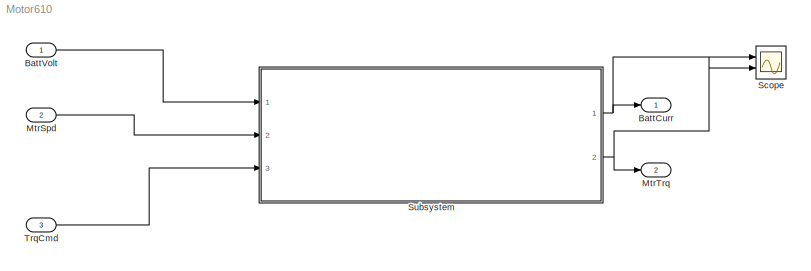
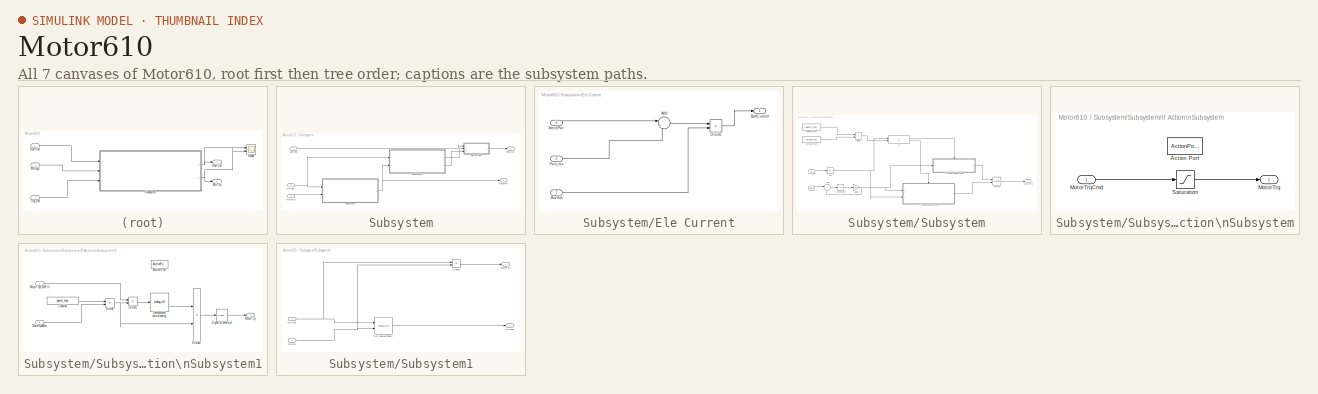
[diagram: thumbnail index - all 7 canvases of the model, root first then tree order]
MODEL Motor610
KIND model
BLOCK [Outport] BattCurr
  IconDisplay = Port number
  SID = 5
BLOCK [Inport] BattVolt
  IconDisplay = Port number
  SID = 1
BLOCK [Inport] MtrSpd
  IconDisplay = Port number
  Port = 2
  SID = 2
BLOCK [Outport] MtrTrq
  IconDisplay = Port number
  Port = 2
  SID = 6
BLOCK [Scope] Scope
  DataFormat = StructureWithTime
  Decimation = 1
  Floating = off
  Grid = on
  LimitDataPoints = off
  MaxDataPoints = 5000
  NumInputPorts = 2
  Ports = [2]
  SID = 110
  SampleInput = off
  SampleTime = -1
  SaveName = ScopeData
  SaveToWorkspace = off
  ShowLegends = off
  TickLabels = OneTimeTick
  TimeRange = auto
  YMax = 331.47128~331.47128
  YMin = -36.83014~-36.83014
  ZoomMode = on
BLOCK [SubSystem] Subsystem
  Ports = [3, 2]
  RequestExecContextInheritance = off
  SID = 7
BLOCK [Outport] Subsystem/BattCurr
  IconDisplay = Port number
  SID = 9
BLOCK [Inport] Subsystem/BattVolt
  IconDisplay = Port number
  SID = 12
BLOCK [SubSystem] Subsystem/Ele Current
  Ports = [3, 1]
  RequestExecContextInheritance = off
  SID = 98
BLOCK [Sum] Subsystem/Ele Current/Add
  IconShape = round
  InputSameDT = off
  Inputs = |++
  OutDataTypeStr = Inherit: Inherit via internal rule
  Ports = [2, 1]
  SID = 104
  SaturateOnIntegerOverflow = off
BLOCK [Outport] Subsystem/Ele Current/BattCurrent
  IconDisplay = Port number
  SID = 100
BLOCK [Inport] Subsystem/Ele Current/BusVolt
  IconDisplay = Port number
  SID = 101
BLOCK [Product] Subsystem/Ele Current/Divide
  InputSameDT = off
  Inputs = */
  OutDataTypeStr = Inherit: Inherit via internal rule
  Ports = [2, 1]
  RndMeth = Floor
  SID = 105
  SaturateOnIntegerOverflow = off
BLOCK [Inport] Subsystem/Ele Current/MechPwr
  IconDisplay = Port number
  Port = 3
  SID = 102
BLOCK [Inport] Subsystem/Ele Current/PwrLoss
  IconDisplay = Port number
  Port = 2
  SID = 103
BLOCK [Outport] Subsystem/MotorTrq
  IconDisplay = Port number
  Port = 2
  SID = 106
BLOCK [Inport] Subsystem/MtrSpd
  IconDisplay = Port number
  Port = 2
  SID = 13
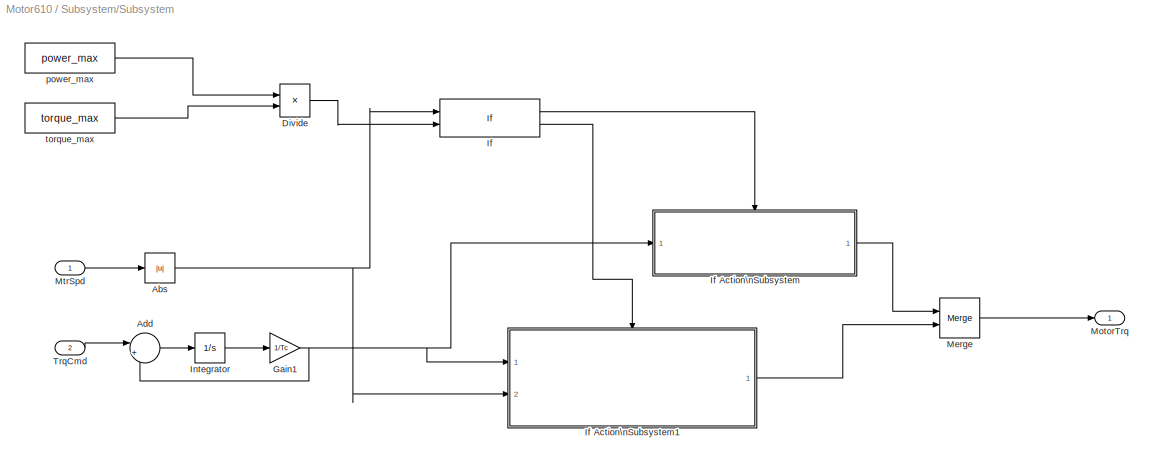
BLOCK [SubSystem] Subsystem/Subsystem
  Ports = [2, 1]
  RequestExecContextInheritance = off
  SID = 15
BLOCK [Abs] Subsystem/Subsystem/Abs
  SID = 23
  SaturateOnIntegerOverflow = off
BLOCK [Sum] Subsystem/Subsystem/Add
  IconShape = round
  InputSameDT = off
  Inputs = |+-
  OutDataTypeStr = Inherit: Inherit via internal rule
  Ports = [2, 1]
  SID = 34
  SaturateOnIntegerOverflow = off
BLOCK [Product] Subsystem/Subsystem/Divide
  InputSameDT = off
  Inputs = */
  OutDataTypeStr = Inherit: Inherit via internal rule
  Ports = [2, 1]
  SID = 22
BLOCK [Gain] Subsystem/Subsystem/Gain1
  Gain = 1/Tc
  OutDataTypeStr = Inherit: Inherit via internal rule
  ParamDataTypeStr = Inherit: Inherit via internal rule
  SID = 35
  SaturateOnIntegerOverflow = off
BLOCK [If] Subsystem/Subsystem/If
  IfExpression = u1<=u2
  NumInputs = 2
  Ports = [2, 2]
  SID = 24
BLOCK [SubSystem] Subsystem/Subsystem/If Action\nSubsystem
  Ports = [1, 1, 0, 0, 0, 0, 0, 1]
  RequestExecContextInheritance = off
  SID = 25
  TreatAsAtomicUnit = on
BLOCK [ActionPort] Subsystem/Subsystem/If Action\nSubsystem/Action Port
  ActionType = then
  SID = 27
BLOCK [Outport] Subsystem/Subsystem/If Action\nSubsystem/MotorTrq
  IconDisplay = Port number
  SID = 28
BLOCK [Inport] Subsystem/Subsystem/If Action\nSubsystem/MotorTrqCmd
  IconDisplay = Port number
  SID = 26
BLOCK [Saturate] Subsystem/Subsystem/If Action\nSubsystem/Saturation
  InputPortMap = u0
  LowerLimit = -torque_max
  Ports = [1, 1]
  SID = 33
  UpperLimit = torque_max
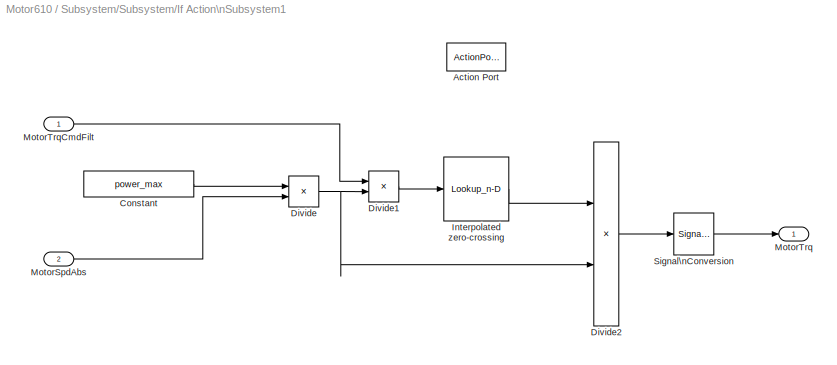
BLOCK [SubSystem] Subsystem/Subsystem/If Action\nSubsystem1
  Ports = [2, 1, 0, 0, 0, 0, 0, 1]
  RequestExecContextInheritance = off
  SID = 29
  TreatAsAtomicUnit = on
BLOCK [ActionPort] Subsystem/Subsystem/If Action\nSubsystem1/Action Port
  ActionType = else
  SID = 54
BLOCK [Constant] Subsystem/Subsystem/If Action\nSubsystem1/Constant
  SID = 55
  Value = power_max
BLOCK [Product] Subsystem/Subsystem/If Action\nSubsystem1/Divide
  InputSameDT = off
  Inputs = */
  OutDataTypeStr = Inherit: Inherit via internal rule
  Ports = [2, 1]
  RndMeth = Floor
  SID = 56
  SaturateOnIntegerOverflow = off
BLOCK [Product] Subsystem/Subsystem/If Action\nSubsystem1/Divide1
  InputSameDT = off
  Inputs = */
  OutDataTypeStr = Inherit: Inherit via internal rule
  Ports = [2, 1]
  RndMeth = Floor
  SID = 57
  SaturateOnIntegerOverflow = off
BLOCK [Product] Subsystem/Subsystem/If Action\nSubsystem1/Divide2
  InputSameDT = off
  OutDataTypeStr = Inherit: Inherit via internal rule
  Ports = [2, 1]
  RndMeth = Floor
  SID = 58
  SaturateOnIntegerOverflow = off
BLOCK [Lookup_n-D] Subsystem/Subsystem/If Action\nSubsystem1/Interpolated zero-crossing
  BreakpointsForDimension1 = [-1 1]
  ExtrapMethod = Clip
  InternalRulePriority = Speed
  NumberOfTableDimensions = 1
  Ports = [1, 1]
  RndMeth = Simplest
  SID = 59
  Table = [-1 1]
BLOCK [Inport] Subsystem/Subsystem/If Action\nSubsystem1/MotorSpdAbs
  IconDisplay = Port number
  Port = 2
  SID = 53
BLOCK [Outport] Subsystem/Subsystem/If Action\nSubsystem1/MotorTrq
  IconDisplay = Port number
  InitialOutput = 0
  SID = 61
BLOCK [Inport] Subsystem/Subsystem/If Action\nSubsystem1/MotorTrqCmdFilt
  IconDisplay = Port number
  SID = 52
BLOCK [SignalConversion] Subsystem/Subsystem/If Action\nSubsystem1/Signal\nConversion
  OverrideOpt = off
  SID = 60
BLOCK [Integrator] Subsystem/Subsystem/Integrator
  Ports = [1, 1]
  SID = 36
BLOCK [Merge] Subsystem/Subsystem/Merge
  Ports = [2, 1]
  SID = 46
BLOCK [Outport] Subsystem/Subsystem/MotorTrq
  IconDisplay = Port number
  SID = 47
BLOCK [Inport] Subsystem/Subsystem/MtrSpd
  IconDisplay = Port number
  SID = 18
BLOCK [Inport] Subsystem/Subsystem/TrqCmd
  IconDisplay = Port number
  Port = 2
  SID = 19
BLOCK [Constant] Subsystem/Subsystem/power_max
  SID = 20
  Value = power_max
BLOCK [Constant] Subsystem/Subsystem/torque_max
  SID = 21
  Value = torque_max
BLOCK [SubSystem] Subsystem/Subsystem1
  Ports = [2, 2]
  RequestExecContextInheritance = off
  SID = 64
BLOCK [Lookup_n-D] Subsystem/Subsystem1/2-D Lookup\nTable
  BreakpointsForDimension1 = x_w_eff_vec
  BreakpointsForDimension2 = x_T_eff_vec
  InternalRulePriority = Speed
  Ports = [2, 1]
  RndMeth = Simplest
  SID = 95
  Table = x_losses_mat
BLOCK [Outport] Subsystem/Subsystem1/MechPwr
  IconDisplay = Port number
  Port = 2
  SID = 97
BLOCK [Inport] Subsystem/Subsystem1/MtrSpd
  IconDisplay = Port number
  SID = 65
BLOCK [Product] Subsystem/Subsystem1/Product
  InputSameDT = off
  OutDataTypeStr = Inherit: Inherit via internal rule
  Ports = [2, 1]
  RndMeth = Floor
  SID = 96
  SaturateOnIntegerOverflow = off
BLOCK [Outport] Subsystem/Subsystem1/PwrLoss
  IconDisplay = Port number
  SID = 92
BLOCK [Inport] Subsystem/Subsystem1/TrqCmd
  IconDisplay = Port number
  Port = 2
  SID = 66
BLOCK [Inport] Subsystem/TrqCmd
  IconDisplay = Port number
  Port = 3
  SID = 14
BLOCK [Inport] TrqCmd
  IconDisplay = Port number
  Port = 3
  SID = 4
LINE BattVolt:1 -> Subsystem:1
LINE MtrSpd:1 -> Subsystem:2
LINE Subsystem/BattVolt:1 -> Subsystem/Ele Current:1
LINE Subsystem/Ele Current/Add:1 -> Subsystem/Ele Current/Divide:1
LINE Subsystem/Ele Current/BusVolt:1 -> Subsystem/Ele Current/Divide:2
LINE Subsystem/Ele Current/Divide:1 -> Subsystem/Ele Current/BattCurrent:1
LINE Subsystem/Ele Current/MechPwr:1 -> Subsystem/Ele Current/Add:1
LINE Subsystem/Ele Current/PwrLoss:1 -> Subsystem/Ele Current/Add:2
LINE Subsystem/Ele Current:1 -> Subsystem/BattCurr:1
NET Subsystem/MtrSpd:1 -> Subsystem/Subsystem1:1, Subsystem/Subsystem:1
NET Subsystem/Subsystem/Abs:1 -> Subsystem/Subsystem/If Action\nSubsystem1:2, Subsystem/Subsystem/If:1
LINE Subsystem/Subsystem/Add:1 -> Subsystem/Subsystem/Integrator:1
LINE Subsystem/Subsystem/Divide:1 -> Subsystem/Subsystem/If:2
NET Subsystem/Subsystem/Gain1:1 -> Subsystem/Subsystem/Add:2, Subsystem/Subsystem/If Action\nSubsystem1:1, Subsystem/Subsystem/If Action\nSubsystem:1
LINE Subsystem/Subsystem/If Action\nSubsystem/MotorTrqCmd:1 -> Subsystem/Subsystem/If Action\nSubsystem/Saturation:1
LINE Subsystem/Subsystem/If Action\nSubsystem/Saturation:1 -> Subsystem/Subsystem/If Action\nSubsystem/MotorTrq:1
LINE Subsystem/Subsystem/If Action\nSubsystem1/Constant:1 -> Subsystem/Subsystem/If Action\nSubsystem1/Divide:1
LINE Subsystem/Subsystem/If Action\nSubsystem1/Divide1:1 -> Subsystem/Subsystem/If Action\nSubsystem1/Interpolated zero-crossing:1
LINE Subsystem/Subsystem/If Action\nSubsystem1/Divide2:1 -> Subsystem/Subsystem/If Action\nSubsystem1/Signal\nConversion:1
NET Subsystem/Subsystem/If Action\nSubsystem1/Divide:1 -> Subsystem/Subsystem/If Action\nSubsystem1/Divide1:2, Subsystem/Subsystem/If Action\nSubsystem1/Divide2:2
LINE Subsystem/Subsystem/If Action\nSubsystem1/Interpolated zero-crossing:1 -> Subsystem/Subsystem/If Action\nSubsystem1/Divide2:1
LINE Subsystem/Subsystem/If Action\nSubsystem1/MotorSpdAbs:1 -> Subsystem/Subsystem/If Action\nSubsystem1/Divide:2
LINE Subsystem/Subsystem/If Action\nSubsystem1/MotorTrqCmdFilt:1 -> Subsystem/Subsystem/If Action\nSubsystem1/Divide1:1
LINE Subsystem/Subsystem/If Action\nSubsystem1/Signal\nConversion:1 -> Subsystem/Subsystem/If Action\nSubsystem1/MotorTrq:1
LINE Subsystem/Subsystem/If Action\nSubsystem1:1 -> Subsystem/Subsystem/Merge:2
LINE Subsystem/Subsystem/If Action\nSubsystem:1 -> Subsystem/Subsystem/Merge:1
LINE Subsystem/Subsystem/If:1 -> Subsystem/Subsystem/If Action\nSubsystem:ifaction
LINE Subsystem/Subsystem/If:2 -> Subsystem/Subsystem/If Action\nSubsystem1:ifaction
LINE Subsystem/Subsystem/Integrator:1 -> Subsystem/Subsystem/Gain1:1
LINE Subsystem/Subsystem/Merge:1 -> Subsystem/Subsystem/MotorTrq:1
LINE Subsystem/Subsystem/MtrSpd:1 -> Subsystem/Subsystem/Abs:1
LINE Subsystem/Subsystem/TrqCmd:1 -> Subsystem/Subsystem/Add:1
LINE Subsystem/Subsystem/power_max:1 -> Subsystem/Subsystem/Divide:1
LINE Subsystem/Subsystem/torque_max:1 -> Subsystem/Subsystem/Divide:2
LINE Subsystem/Subsystem1/2-D Lookup\nTable:1 -> Subsystem/Subsystem1/PwrLoss:1
NET Subsystem/Subsystem1/MtrSpd:1 -> Subsystem/Subsystem1/2-D Lookup\nTable:1, Subsystem/Subsystem1/Product:1
LINE Subsystem/Subsystem1/Product:1 -> Subsystem/Subsystem1/MechPwr:1
NET Subsystem/Subsystem1/TrqCmd:1 -> Subsystem/Subsystem1/2-D Lookup\nTable:2, Subsystem/Subsystem1/Product:2
LINE Subsystem/Subsystem1:1 -> Subsystem/Ele Current:2
LINE Subsystem/Subsystem1:2 -> Subsystem/Ele Current:3
NET Subsystem/Subsystem:1 -> Subsystem/MotorTrq:1, Subsystem/Subsystem1:2
LINE Subsystem/TrqCmd:1 -> Subsystem/Subsystem:2
NET Subsystem:1 -> BattCurr:1, Scope:1
NET Subsystem:2 -> MtrTrq:1, Scope:2
LINE TrqCmd:1 -> Subsystem:3
note: NET lines group one-source signal fan-out (src -> all destinations, sorted); 1:1 wires keep LINE
